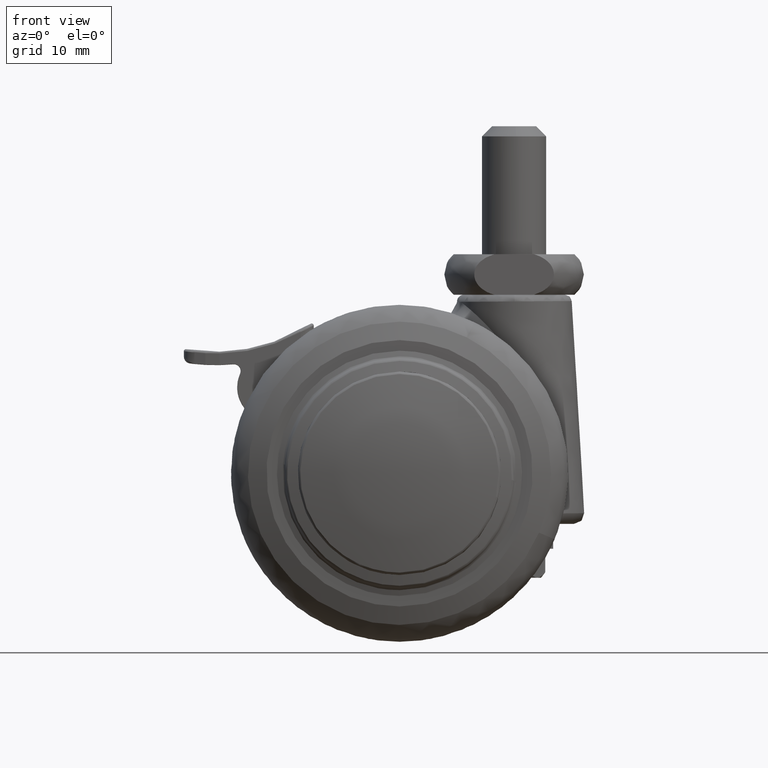
[diagram: clean part render]
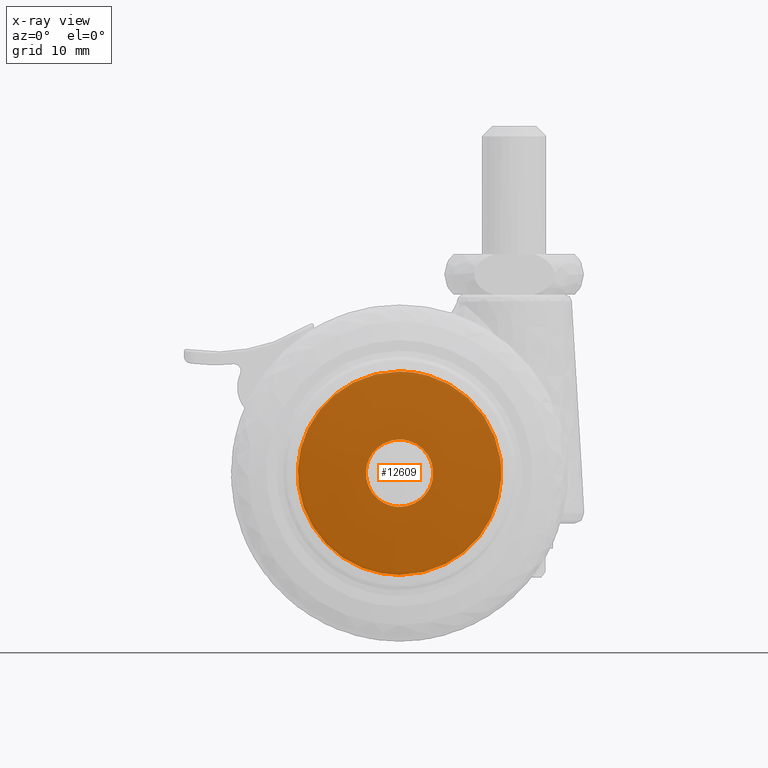
[diagram: x-ray — body ghosted, one internal face saturated and labeled with its STEP entity id]
A machine part, front view, then the same camera in x-ray: the body is ghosted and one INTERNAL B-rep face — a face not visible from any outside direction — is saturated and labeled: STEP entity #12609.
In plain terms, the highlighted face is a freeform B-spline surface patch.
Its self-contained STEP definition (entity closure, byte-faithful):
#8791=CARTESIAN_POINT('',(4.965047991439940,18.499999999999979,-0.590168147809524));
#8792=VERTEX_POINT('',#8791);
#8793=CARTESIAN_POINT('',(0.0,18.500000000000000,5.000000000000002));
#8794=VERTEX_POINT('',#8793);
#8795=CARTESIAN_POINT('',(4.965047991439940,18.499999999999979,-0.590168147809524));
#8796=CARTESIAN_POINT('',(5.0,18.499999999999993,-0.296119069530090));
#8797=CARTESIAN_POINT('',(5.0,18.500000000000000,1.789254E-015));
#8798=CARTESIAN_POINT('',(5.000000000000001,18.500000000000000,5.000000000000002));
#8799=CARTESIAN_POINT('',(0.0,18.500000000000000,5.000000000000002));
#8807=(BOUNDED_CURVE()B_SPLINE_CURVE(2,(#8795,#8796,#8797,#8798,#8799),.UNSPECIFIED.,.F.,.U.)B_SPLINE_CURVE_WITH_KNOTS((3,2,3),(0.229562576498544,0.250000000000000,0.500000000000000),.UNSPECIFIED.)CURVE()GEOMETRIC_REPRESENTATION_ITEM()RATIONAL_B_SPLINE_CURVE((0.956026956038683,0.976056068985619,1.0,0.707106781186548,1.0))REPRESENTATION_ITEM(''));
#8808=EDGE_CURVE('',#8792,#8794,#8807,.T.);
#8810=CARTESIAN_POINT('',(-4.990673992105791,18.500000000000000,0.305242697732215));
#8811=VERTEX_POINT('',#8810);
#8812=CARTESIAN_POINT('',(0.0,18.500000000000000,5.000000000000002));
#8813=CARTESIAN_POINT('',(-4.703530334419106,18.499999999999996,5.000000000000001));
#8814=CARTESIAN_POINT('',(-4.990673992105793,18.500000000000000,0.305242697732215));
#8822=(BOUNDED_CURVE()B_SPLINE_CURVE(2,(#8812,#8813,#8814),.UNSPECIFIED.,.F.,.U.)B_SPLINE_CURVE_WITH_KNOTS((3,3),(0.500000000000000,0.739332962237964),.UNSPECIFIED.)CURVE()GEOMETRIC_REPRESENTATION_ITEM()RATIONAL_B_SPLINE_CURVE((1.0,0.719603993287858,0.976072041664619))REPRESENTATION_ITEM(''));
#8823=EDGE_CURVE('',#8794,#8811,#8822,.T.);
#8890=CARTESIAN_POINT('',(0.0,18.500000000000000,-4.999999999999998));
#8891=VERTEX_POINT('',#8890);
#8892=CARTESIAN_POINT('',(0.0,18.500000000000000,-4.999999999999998));
#8893=CARTESIAN_POINT('',(4.440875354873081,18.500000000000004,-4.999999999999998));
#8894=CARTESIAN_POINT('',(4.965047991439940,18.499999999999979,-0.590168147809524));
#8902=(BOUNDED_CURVE()B_SPLINE_CURVE(2,(#8892,#8893,#8894),.UNSPECIFIED.,.F.,.U.)B_SPLINE_CURVE_WITH_KNOTS((3,3),(0.0,0.229562576498544),.UNSPECIFIED.)CURVE()GEOMETRIC_REPRESENTATION_ITEM()RATIONAL_B_SPLINE_CURVE((1.0,0.731050712200928,0.956026956038683))REPRESENTATION_ITEM(''));
#8903=EDGE_CURVE('',#8891,#8792,#8902,.T.);
#8937=CARTESIAN_POINT('',(-4.990673992105791,18.499999999999996,0.305242697732215));
#8938=CARTESIAN_POINT('',(-5.0,18.499999999999993,0.152763816551038));
#8939=CARTESIAN_POINT('',(-5.0,18.500000000000000,1.789254E-015));
#8940=CARTESIAN_POINT('',(-5.000000000000001,18.500000000000000,-4.999999999999997));
#8941=CARTESIAN_POINT('',(0.0,18.500000000000000,-4.999999999999998));
#8949=(BOUNDED_CURVE()B_SPLINE_CURVE(2,(#8937,#8938,#8939,#8940,#8941),.UNSPECIFIED.,.F.,.U.)B_SPLINE_CURVE_WITH_KNOTS((3,2,3),(0.739332962237963,0.750000000000000,1.0),.UNSPECIFIED.)CURVE()GEOMETRIC_REPRESENTATION_ITEM()RATIONAL_B_SPLINE_CURVE((0.976072041664617,0.987502787898689,1.0,0.707106781186548,1.0))REPRESENTATION_ITEM(''));
#8950=EDGE_CURVE('',#8811,#8891,#8949,.T.);
#9062=CARTESIAN_POINT('',(14.934140575305930,18.500000000000000,2.231915158995009));
#9063=VERTEX_POINT('',#9062);
#9069=CARTESIAN_POINT('',(0.0,18.500000000000000,-15.100000000000000));
#9070=VERTEX_POINT('',#9069);
#9071=CARTESIAN_POINT('',(0.0,18.500000000000000,-15.100000000000000));
#9072=CARTESIAN_POINT('',(15.100000000000005,18.500000000000004,-15.100000000000005));
#9073=CARTESIAN_POINT('',(15.100000000000000,18.500000000000000,1.789254E-015));
#9074=CARTESIAN_POINT('',(15.100000000000000,18.500000000000004,1.122120302271483));
#9075=CARTESIAN_POINT('',(14.934140575305925,18.499999999999993,2.231915158995009));
#9083=(BOUNDED_CURVE()B_SPLINE_CURVE(2,(#9071,#9072,#9073,#9074,#9075),.UNSPECIFIED.,.F.,.U.)B_SPLINE_CURVE_WITH_KNOTS((3,2,3),(0.0,0.250000000000000,0.275488891766935),.UNSPECIFIED.)CURVE()GEOMETRIC_REPRESENTATION_ITEM()RATIONAL_B_SPLINE_CURVE((1.0,0.707106781186547,1.0,0.970137905785578,0.946365025070080))REPRESENTATION_ITEM(''));
#9084=EDGE_CURVE('',#9070,#9063,#9083,.T.);
#9086=CARTESIAN_POINT('',(0.0,18.500000000000000,15.100000000000000));
#9087=VERTEX_POINT('',#9086);
#9088=CARTESIAN_POINT('',(0.0,18.500000000000000,15.100000000000000));
#9089=CARTESIAN_POINT('',(-15.100000000000005,18.500000000000004,15.100000000000005));
#9090=CARTESIAN_POINT('',(-15.100000000000000,18.500000000000000,1.789254E-015));
#9091=CARTESIAN_POINT('',(-15.100000000000005,18.500000000000004,-15.100000000000005));
#9092=CARTESIAN_POINT('',(0.0,18.500000000000000,-15.100000000000000));
#9100=(BOUNDED_CURVE()B_SPLINE_CURVE(2,(#9088,#9089,#9090,#9091,#9092),.UNSPECIFIED.,.F.,.U.)B_SPLINE_CURVE_WITH_KNOTS((3,2,3),(0.500000000000000,0.750000000000000,1.0),.UNSPECIFIED.)CURVE()GEOMETRIC_REPRESENTATION_ITEM()RATIONAL_B_SPLINE_CURVE((1.0,0.707106781186547,1.0,0.707106781186547,1.0))REPRESENTATION_ITEM(''));
#9101=EDGE_CURVE('',#9087,#9070,#9100,.T.);
#9103=CARTESIAN_POINT('',(10.141253550959391,18.500000000000000,11.187715424301270));
#9104=VERTEX_POINT('',#9103);
#9105=CARTESIAN_POINT('',(10.141253550959391,18.499999999999996,11.187715424301274));
#9106=CARTESIAN_POINT('',(5.825265761889922,18.500000000000000,15.100000000000003));
#9107=CARTESIAN_POINT('',(0.0,18.500000000000000,15.100000000000000));
#9115=(BOUNDED_CURVE()B_SPLINE_CURVE(2,(#9105,#9106,#9107),.UNSPECIFIED.,.F.,.U.)B_SPLINE_CURVE_WITH_KNOTS((3,3),(0.382398575846594,0.500000000000000),.UNSPECIFIED.)CURVE()GEOMETRIC_REPRESENTATION_ITEM()RATIONAL_B_SPLINE_CURVE((0.854066435707134,0.862221361370651,1.0))REPRESENTATION_ITEM(''));
#9116=EDGE_CURVE('',#9104,#9087,#9115,.T.);
#9158=CARTESIAN_POINT('',(14.934140575305925,18.499999999999993,2.231915158995009));
#9159=CARTESIAN_POINT('',(14.137001105737571,18.500000000000004,7.565716871262469));
#9160=CARTESIAN_POINT('',(10.141253550959391,18.499999999999996,11.187715424301274));
#9168=(BOUNDED_CURVE()B_SPLINE_CURVE(2,(#9158,#9159,#9160),.UNSPECIFIED.,.F.,.U.)B_SPLINE_CURVE_WITH_KNOTS((3,3),(0.275488891766935,0.382398575846594),.UNSPECIFIED.)CURVE()GEOMETRIC_REPRESENTATION_ITEM()RATIONAL_B_SPLINE_CURVE((0.946365025070080,0.846652915567765,0.854066435707134))REPRESENTATION_ITEM(''));
#9169=EDGE_CURVE('',#9063,#9104,#9168,.T.);
#12592=CARTESIAN_POINT('',(-16.608281190969819,18.500000000000000,-16.608490508458530));
#12593=CARTESIAN_POINT('',(-16.608281190969819,18.500000000000000,16.608490778467559));
#12594=CARTESIAN_POINT('',(16.604090920665140,18.500000000000000,-16.608490508458530));
#12595=CARTESIAN_POINT('',(16.604090920665140,18.500000000000000,16.608490778467559));
#12596=B_SPLINE_SURFACE_WITH_KNOTS('',1,1,((#12592,#12594),(#12593,#12595)),.UNSPECIFIED.,.F.,.F.,.U.,(2,2),(2,2),(0.0,33.216981286926092),(0.0,33.212372111634963),.UNSPECIFIED.);
#12597=ORIENTED_EDGE('',*,*,#9084,.T.);
#12598=ORIENTED_EDGE('',*,*,#9169,.T.);
#12599=ORIENTED_EDGE('',*,*,#9116,.T.);
#12600=ORIENTED_EDGE('',*,*,#9101,.T.);
#12601=EDGE_LOOP('',(#12597,#12598,#12599,#12600));
#12602=FACE_OUTER_BOUND('',#12601,.T.);
#12603=ORIENTED_EDGE('',*,*,#8823,.F.);
#12604=ORIENTED_EDGE('',*,*,#8808,.F.);
#12605=ORIENTED_EDGE('',*,*,#8903,.F.);
#12606=ORIENTED_EDGE('',*,*,#8950,.F.);
#12607=EDGE_LOOP('',(#12603,#12604,#12605,#12606));
#12608=FACE_BOUND('',#12607,.T.);
#12609=ADVANCED_FACE('',(#12602,#12608),#12596,.F.);